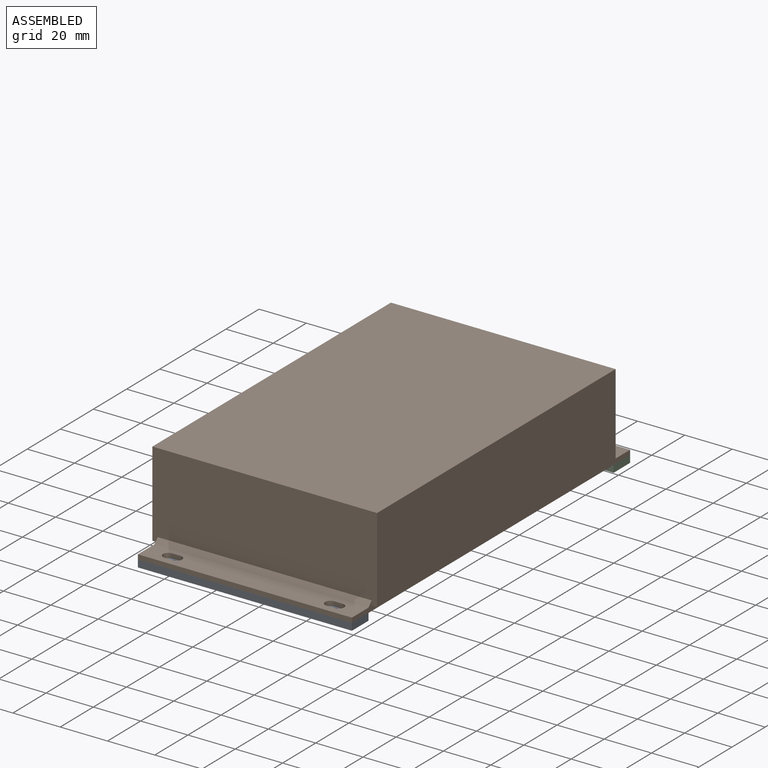
[diagram: assembled view]
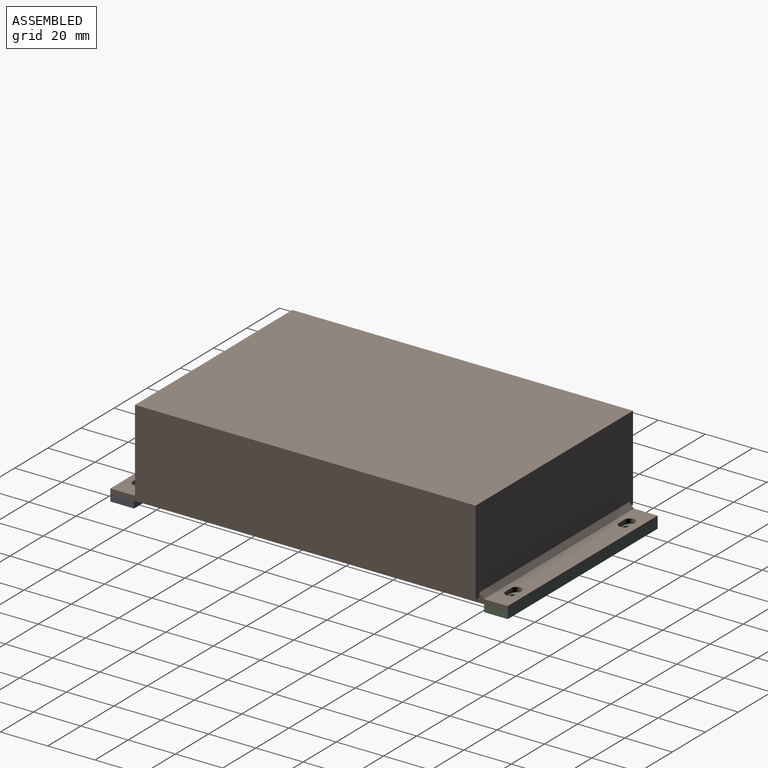
[diagram: assembled view, second angle]
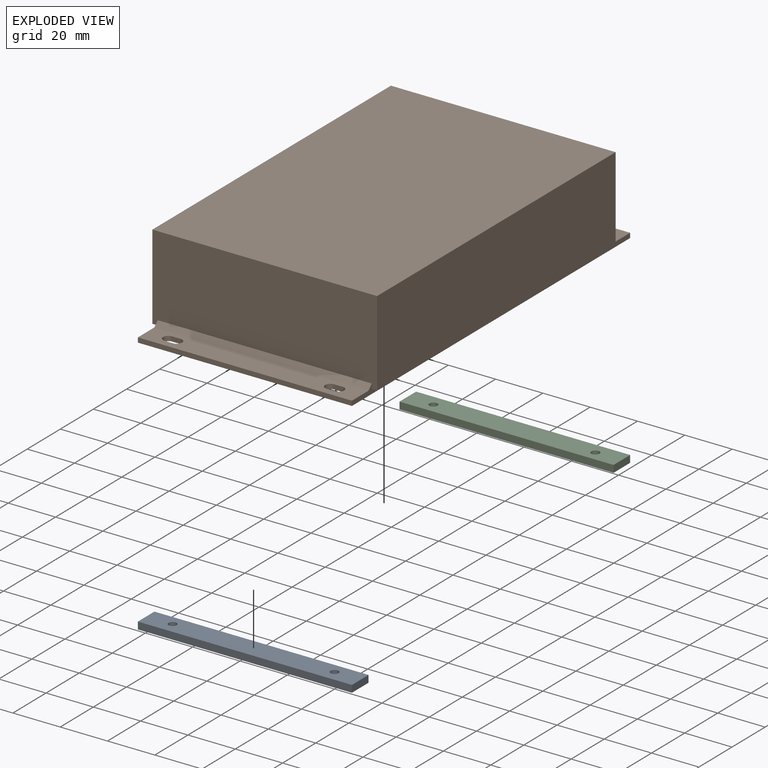
[diagram: exploded view]
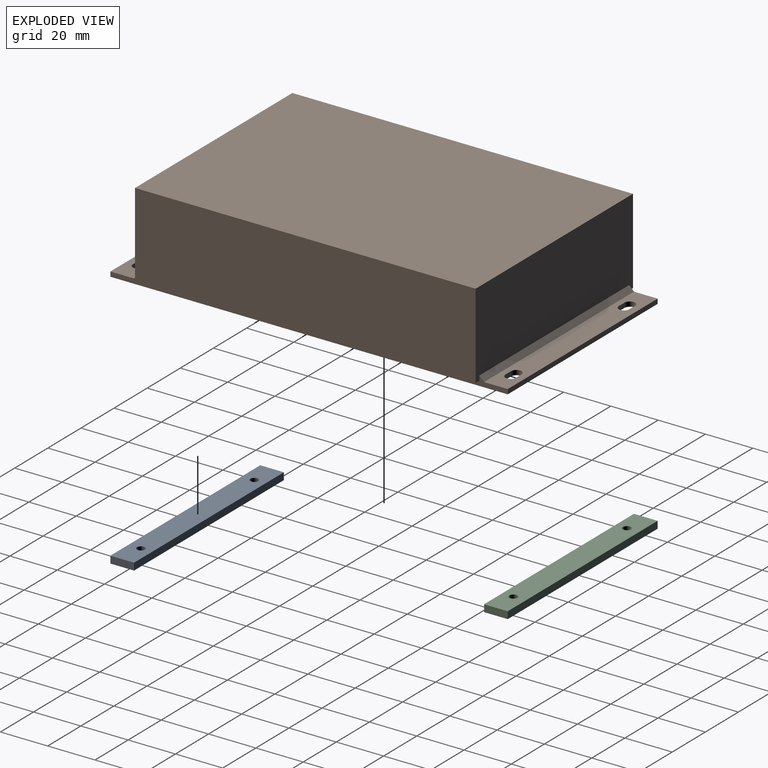
[diagram: exploded view, second angle]
ASSEMBLY  parts=3 mates=2
PART A: 8 faces, bbox 90.5x3x10 mm
  f0: plane 10x3mm, normal (-1,0,0), area 30mm2, adj f1,f3,f4,f5
  f1: plane 90.5x3mm, normal (0,0,-1), area 271.5mm2, adj f0,f2,f4,f5
  f2: plane 10x3mm, normal (1,0,0), area 30mm2, adj f1,f3,f4,f5
  f3: plane 90.5x3mm, normal (0,0,1), area 271.5mm2, adj f0,f2,f4,f5
  f4: plane 90.5x10mm, normal (0,-1,0), area 886.8mm2, adj f0,f1,f2,f3,f6,f7
  f5: plane 90.5x10mm, normal (0,1,0), area 886.8mm2, adj f0,f1,f2,f3,f6,f7
  f6: cylinder r=1.7mm len=3.4mm, axis (0,-1,0), area 32mm2, adj f4,f5
  f7: cylinder r=1.7mm len=3.4mm, axis (0,-1,0), area 32mm2, adj f4,f5
PART B: 32 faces, bbox 95x168x38 mm
  f0: plane 90.5x10mm, normal (0,0,1), area 841.7mm2, adj f3,f4,f6,f22,f23,f24,f25,f26
  f1: plane 168x90.5mm, normal (0,0,-1), area 15077.4mm2, adj f3,f4,f5,f6,f14,f15,f16,f17
  f2: plane 90.5x10mm, normal (0,0,1), area 841.7mm2, adj f3,f4,f5,f14,f15,f16,f17,f18
  f3: plane 168x4mm, normal (-1,0,0), area 340mm2, adj f0,f1,f2,f5,f6,f8,f10,f13
  f4: plane 168x4mm, normal (1,0,0), area 340mm2, adj f0,f1,f2,f5,f6,f7,f8,f10
  f5: plane 90.5x2mm, normal (0,-1,0), area 181mm2, adj f1,f2,f3,f4
  f6: plane 90.5x2mm, normal (0,1,0), area 181mm2, adj f0,f1,f3,f4
  f7: plane 144x2.25mm, normal (0,0,-1), area 324mm2, adj f4,f8,f10,f11
  f8: plane 95x36mm, normal (0,1,0), area 3239mm2, adj f3,f4,f7,f9,f11,f12,f13,f31
  f9: plane 144x36mm, normal (-1,0,0), area 5184mm2, adj f8,f10,f12,f13
  f10: plane 95x36mm, normal (0,-1,0), area 3239mm2, adj f3,f4,f7,f9,f11,f12,f13,f30
  f11: plane 144x36mm, normal (1,0,0), area 5184mm2, adj f7,f8,f10,f12
  f12: plane 144x95mm, normal (0,0,1), area 13680mm2, adj f8,f9,f10,f11
  f13: plane 144x2.25mm, normal (0,0,-1), area 324mm2, adj f3,f8,f9,f10
  f14: plane 3.5x2mm, normal (0,1,0), area 7mm2, adj f1,f2,f15,f17
  f15: cylinder r=2.25mm len=4.5mm, axis (0,0,1), area 14.1mm2, adj f1,f2,f14,f16
  f16: plane 3.5x2mm, normal (0,-1,0), area 7mm2, adj f1,f2,f15,f17
  f17: cylinder r=2.25mm len=4.5mm, axis (0,0,1), area 14.1mm2, adj f1,f2,f14,f16
  f18: cylinder r=2.25mm len=4.5mm, axis (0,0,1), area 14.1mm2, adj f1,f2,f19,f21
  f19: plane 3.5x2mm, normal (0,1,0), area 7mm2, adj f1,f2,f18,f20
  f20: cylinder r=2.25mm len=4.5mm, axis (0,0,1), area 14.1mm2, adj f1,f2,f19,f21
  f21: plane 3.5x2mm, normal (0,-1,0), area 7mm2, adj f1,f2,f18,f20
  f22: cylinder r=2.25mm len=4.5mm, axis (0,0,1), area 14.1mm2, adj f0,f1,f23,f25
  f23: plane 3.5x2mm, normal (0,-1,0), area 7mm2, adj f0,f1,f22,f24
  f24: cylinder r=2.25mm len=4.5mm, axis (0,0,1), area 14.1mm2, adj f0,f1,f23,f25
  f25: plane 3.5x2mm, normal (0,1,0), area 7mm2, adj f0,f1,f22,f24
  f26: plane 3.5x2mm, normal (0,-1,0), area 7mm2, adj f0,f1,f27,f29
  f27: cylinder r=2.25mm len=4.5mm, axis (0,0,1), area 14.1mm2, adj f0,f1,f26,f28
  f28: plane 3.5x2mm, normal (0,1,0), area 7mm2, adj f0,f1,f27,f29
  f29: cylinder r=2.25mm len=4.5mm, axis (0,0,1), area 14.1mm2, adj f0,f1,f26,f28
  f30: plane 90.5x2mm, normal (0,-0.71,0.71), area 256mm2, adj f2,f3,f4,f10
  f31: plane 90.5x2mm, normal (0,0.71,0.71), area 256mm2, adj f0,f3,f4,f8
PART C: same geometry as A
PLACE A rot(axis=(0,-0.71,0.71),180deg) t=(30.32,-134.29,-58.76)mm
PLACE B rot(axis=(1,0,0),0deg) t=(-60.18,23.71,-55.76)mm
PLACE C rot(axis=(0,-0.71,-0.71),180deg) t=(30.32,13.71,-55.76)mm
MATE fastened A.f4 <-> B.f1  axis (0,0,1) through (-14.93,-144.29,-55.76)mm
MATE fastened C.f5 <-> B.f1  axis (0,0,1) through (-14.93,23.71,-55.76)mm
